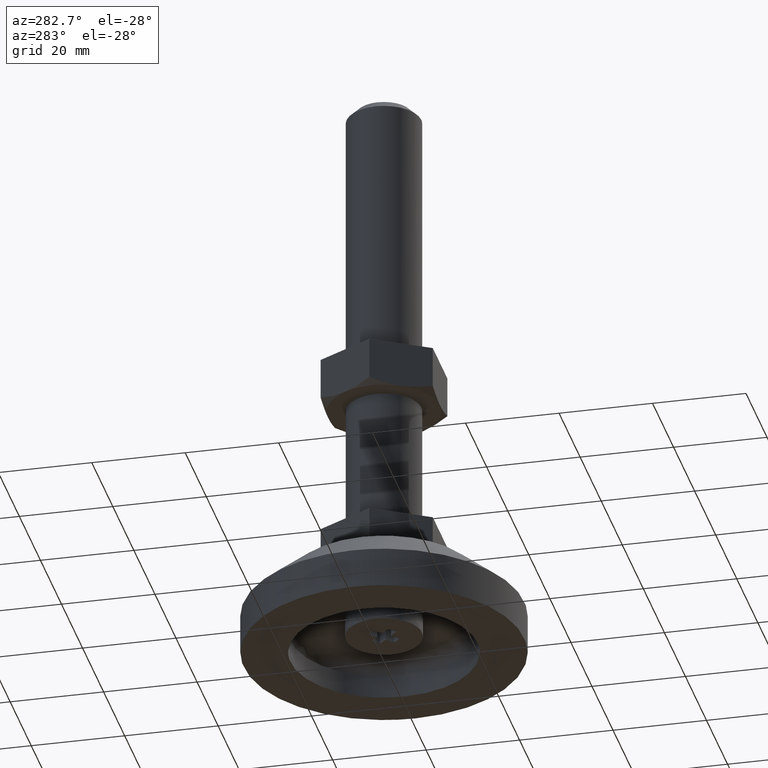
[diagram: clean part render]
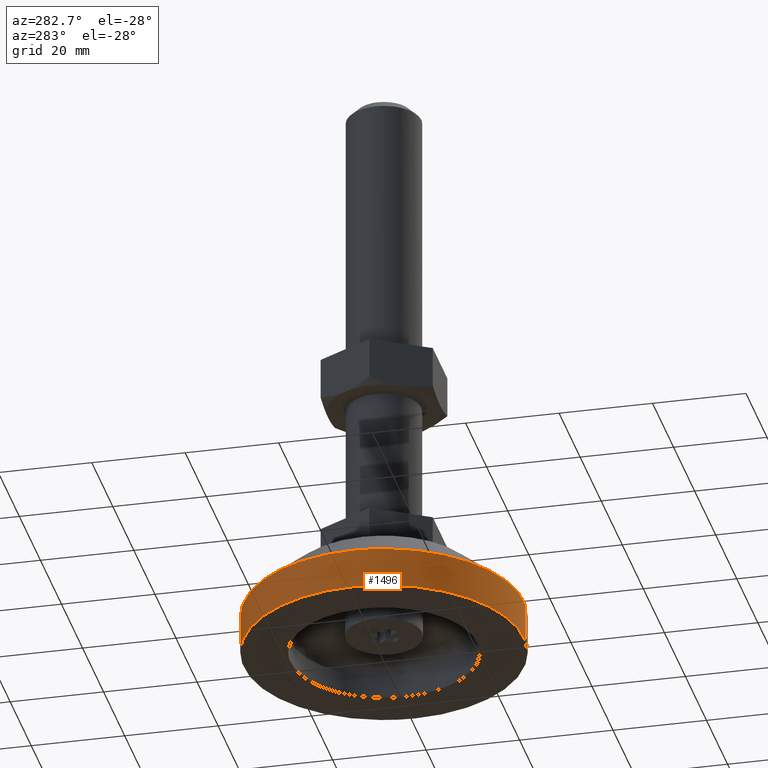
[diagram: same view with one face highlighted and labeled with its STEP entity id]
A machine part, auxiliary view. The second image highlights one B-rep face of the part: STEP entity #1496.
In plain terms, the highlighted face is a freeform B-spline surface patch.
Its self-contained STEP definition (entity closure, byte-faithful):
#1149=CARTESIAN_POINT('',(-1.831437308064484,29.944045066131800,8.609004034445260));
#1150=VERTEX_POINT('',#1149);
#1158=CARTESIAN_POINT('',(1.831437308064485,-29.944045066131800,8.609004034445260));
#1159=VERTEX_POINT('',#1158);
#1217=CARTESIAN_POINT('',(-30.0,0.0,8.609004000000001));
#1218=VERTEX_POINT('',#1217);
#1219=CARTESIAN_POINT('',(-30.0,0.0,8.609004000000001));
#1220=CARTESIAN_POINT('',(-30.000009436483825,28.221217054861278,8.609004017222631));
#1221=CARTESIAN_POINT('',(-1.831437308064483,29.944045066131803,8.609004034445260));
#1229=(BOUNDED_CURVE()B_SPLINE_CURVE(2,(#1219,#1220,#1221),.UNSPECIFIED.,.F.,.U.)B_SPLINE_CURVE_WITH_KNOTS((3,3),(0.0,0.239333179774589),.UNSPECIFIED.)CURVE()GEOMETRIC_REPRESENTATION_ITEM()RATIONAL_B_SPLINE_CURVE((1.0,0.719603738427848,0.976072507887460))REPRESENTATION_ITEM(''));
#1230=EDGE_CURVE('',#1218,#1150,#1229,.T.);
#1232=CARTESIAN_POINT('',(1.831437308064485,-29.944045066131803,8.609004034445260));
#1233=CARTESIAN_POINT('',(0.916582572316648,-29.999998821731680,8.609004033950271));
#1234=CARTESIAN_POINT('',(0.000018313452609,-29.999998839993410,8.609004033424084));
#1235=CARTESIAN_POINT('',(-29.999991123031201,-29.999999437717040,8.609004016201455));
#1236=CARTESIAN_POINT('',(-30.0,0.0,8.609004000000001));
#1244=(BOUNDED_CURVE()B_SPLINE_CURVE(2,(#1232,#1233,#1234,#1235,#1236),.UNSPECIFIED.,.F.,.U.)B_SPLINE_CURVE_WITH_KNOTS((3,2,3),(0.739333179774589,0.750000000000000,1.0),.UNSPECIFIED.)CURVE()GEOMETRIC_REPRESENTATION_ITEM()RATIONAL_B_SPLINE_CURVE((0.976072507887460,0.987503042758699,1.0,0.707106781186547,1.0))REPRESENTATION_ITEM(''));
#1245=EDGE_CURVE('',#1159,#1218,#1244,.T.);
#1395=CARTESIAN_POINT('',(1.831418889831311,-29.944046233743570,-1.942890E-016));
#1396=VERTEX_POINT('',#1395);
#1397=CARTESIAN_POINT('',(1.831437308064485,-29.944045066131800,8.609004034445260));
#1398=CARTESIAN_POINT('',(1.831418889831311,-29.944046233743570,-1.942890E-016));
#1399=QUASI_UNIFORM_CURVE('',1,(#1397,#1398),.UNSPECIFIED.,.F.,.U.);
#1400=EDGE_CURVE('',#1159,#1396,#1399,.T.);
#1417=CARTESIAN_POINT('',(-1.831418889831314,29.944046233743570,3.191891E-016));
#1418=VERTEX_POINT('',#1417);
#1434=CARTESIAN_POINT('',(-1.831437308064484,29.944045066131800,8.609004034445260));
#1435=CARTESIAN_POINT('',(-1.831418889831314,29.944046233743570,3.191891E-016));
#1436=QUASI_UNIFORM_CURVE('',1,(#1434,#1435),.UNSPECIFIED.,.F.,.U.);
#1437=EDGE_CURVE('',#1150,#1418,#1436,.T.);
#1442=CARTESIAN_POINT('',(1.831456186045710,-29.944043952655999,8.824229100000002));
#1443=CARTESIAN_POINT('',(-28.112587766610297,-31.775500138701705,8.824229100000002));
#1444=CARTESIAN_POINT('',(-29.944043952655999,-1.831456186045710,8.824229100000002));
#1445=CARTESIAN_POINT('',(-31.775500138701705,28.112587766610297,8.824229100000002));
#1446=CARTESIAN_POINT('',(-1.831456186045710,29.944043952655999,8.824229100000002));
#1447=CARTESIAN_POINT('',(1.831456186045710,-29.944043952655999,-0.220605727500001));
#1448=CARTESIAN_POINT('',(-28.112587766610297,-31.775500138701705,-0.220605727500001));
#1449=CARTESIAN_POINT('',(-29.944043952655999,-1.831456186045710,-0.220605727500001));
#1450=CARTESIAN_POINT('',(-31.775500138701705,28.112587766610297,-0.220605727500001));
#1451=CARTESIAN_POINT('',(-1.831456186045710,29.944043952655999,-0.220605727500001));
#1459=(BOUNDED_SURFACE()B_SPLINE_SURFACE(2,1,((#1442,#1447),(#1443,#1448),(#1444,#1449),(#1445,#1450),(#1446,#1451)),.UNSPECIFIED.,.F.,.F.,.U.)B_SPLINE_SURFACE_WITH_KNOTS((3,2,3),(2,2),(0.0,49.705627484771391,99.411254969542782),(0.0,9.044834827500003),.UNSPECIFIED.)GEOMETRIC_REPRESENTATION_ITEM()RATIONAL_B_SPLINE_SURFACE(((1.0,1.0),(0.707106781186548,0.707106781186548),(1.0,1.0),(0.707106781186548,0.707106781186548),(1.0,1.0)))REPRESENTATION_ITEM('')SURFACE());
#1460=ORIENTED_EDGE('',*,*,#1230,.T.);
#1461=ORIENTED_EDGE('',*,*,#1437,.T.);
#1462=CARTESIAN_POINT('',(-30.0,0.0,0.0));
#1463=VERTEX_POINT('',#1462);
#1464=CARTESIAN_POINT('',(-30.0,0.0,0.0));
#1465=CARTESIAN_POINT('',(-29.999999999999282,28.221217223199776,1.595946E-016));
#1466=CARTESIAN_POINT('',(-1.831418889831314,29.944046233743574,3.191891E-016));
#1474=(BOUNDED_CURVE()B_SPLINE_CURVE(2,(#1464,#1465,#1466),.UNSPECIFIED.,.F.,.U.)B_SPLINE_CURVE_WITH_KNOTS((3,3),(0.0,0.239333177154260),.UNSPECIFIED.)CURVE()GEOMETRIC_REPRESENTATION_ITEM()RATIONAL_B_SPLINE_CURVE((1.0,0.719603741497755,0.976072502271585))REPRESENTATION_ITEM(''));
#1475=EDGE_CURVE('',#1463,#1418,#1474,.T.);
#1476=ORIENTED_EDGE('',*,*,#1475,.F.);
#1477=CARTESIAN_POINT('',(1.831418889831311,-29.944046233743574,-1.942890E-016));
#1478=CARTESIAN_POINT('',(0.916564198563367,-29.999999999977103,-1.914970E-016));
#1479=CARTESIAN_POINT('',(-1.381541E-012,-29.999999999977462,-1.885291E-016));
#1480=CARTESIAN_POINT('',(-30.000000000000671,-29.999999999989075,-9.138455E-017));
#1481=CARTESIAN_POINT('',(-30.0,0.0,0.0));
#1489=(BOUNDED_CURVE()B_SPLINE_CURVE(2,(#1477,#1478,#1479,#1480,#1481),.UNSPECIFIED.,.F.,.U.)B_SPLINE_CURVE_WITH_KNOTS((3,2,3),(0.739333177154260,0.750000000000000,1.0),.UNSPECIFIED.)CURVE()GEOMETRIC_REPRESENTATION_ITEM()RATIONAL_B_SPLINE_CURVE((0.976072502271585,0.987503039688793,1.0,0.707106781186547,1.0))REPRESENTATION_ITEM(''));
#1490=EDGE_CURVE('',#1396,#1463,#1489,.T.);
#1491=ORIENTED_EDGE('',*,*,#1490,.F.);
#1492=ORIENTED_EDGE('',*,*,#1400,.F.);
#1493=ORIENTED_EDGE('',*,*,#1245,.T.);
#1494=EDGE_LOOP('',(#1460,#1461,#1476,#1491,#1492,#1493));
#1495=FACE_OUTER_BOUND('',#1494,.T.);
#1496=ADVANCED_FACE('',(#1495),#1459,.T.);